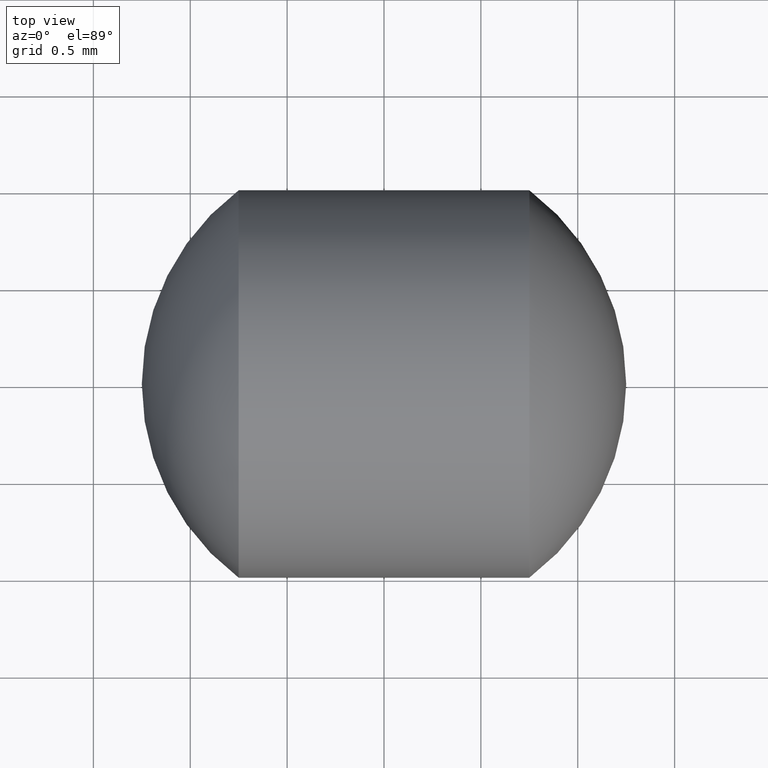
[diagram: clean part render]
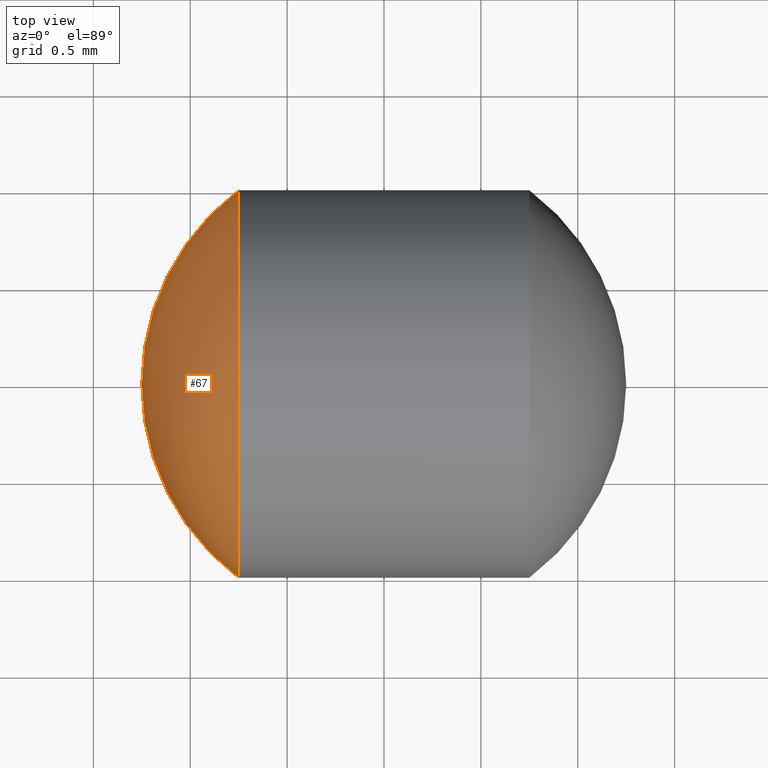
[diagram: same view with one face highlighted and labeled with its STEP entity id]
A machine part, top view. The second image highlights one B-rep face of the part: STEP entity #67.
In plain terms, the highlighted spherical surface has radius 1.25 mm.
Its self-contained STEP definition (entity closure, byte-faithful):
#4 = ORIENTED_EDGE ( 'NONE', *, *, #265, .T. ) ;
#15 = VERTEX_POINT ( 'NONE', #54 ) ;
#16 = DIRECTION ( 'NONE',  ( 4.187626049147712300E-017, 1.000000000000000000, 0.0000000000000000000 ) ) ;
#21 = CARTESIAN_POINT ( 'NONE',  ( -0.7500000000000001100, -0.9999999999999997800, -1.224646799147353000E-016 ) ) ;
#31 = CARTESIAN_POINT ( 'NONE',  ( 0.0000000000000000000, 0.0000000000000000000, 0.0000000000000000000 ) ) ;
#42 = SPHERICAL_SURFACE ( 'NONE', #259, 1.250000000000000000 ) ;
#44 = ORIENTED_EDGE ( 'NONE', *, *, #206, .T. ) ;
#54 = CARTESIAN_POINT ( 'NONE',  ( -0.7500000000000001100, 1.000000000000000000, 0.0000000000000000000 ) ) ;
#67 = ADVANCED_FACE ( 'NONE', ( #172 ), #42, .T. ) ;
#75 = DIRECTION ( 'NONE',  ( 5.128362837114822700E-033, 1.224646799147353200E-016, -1.000000000000000000 ) ) ;
#88 = CARTESIAN_POINT ( 'NONE',  ( -0.7500000000000001100, 1.160500205169223100E-016, 0.0000000000000000000 ) ) ;
#89 = CARTESIAN_POINT ( 'NONE',  ( -1.250000000000000000, 1.288857505610559800E-016, 0.0000000000000000000 ) ) ;
#93 = ORIENTED_EDGE ( 'NONE', *, *, #225, .F. ) ;
#99 = CARTESIAN_POINT ( 'NONE',  ( 0.0000000000000000000, 0.0000000000000000000, 0.0000000000000000000 ) ) ;
#105 = AXIS2_PLACEMENT_3D ( 'NONE', #214, #75, #292 ) ;
#122 = VERTEX_POINT ( 'NONE', #89 ) ;
#172 = FACE_OUTER_BOUND ( 'NONE', #286, .T. ) ;
#178 = DIRECTION ( 'NONE',  ( -1.000000000000000000, 4.187626049147712300E-017, -0.0000000000000000000 ) ) ;
#183 = CIRCLE ( 'NONE', #289, 1.000000000000000200 ) ;
#198 = VERTEX_POINT ( 'NONE', #21 ) ;
#203 = DIRECTION ( 'NONE',  ( 0.0000000000000000000, -1.000000000000000000, 0.0000000000000000000 ) ) ;
#206 = EDGE_CURVE ( 'NONE', #15, #122, #266, .T. ) ;
#214 = CARTESIAN_POINT ( 'NONE',  ( 0.0000000000000000000, 0.0000000000000000000, 0.0000000000000000000 ) ) ;
#222 = DIRECTION ( 'NONE',  ( 0.0000000000000000000, 0.0000000000000000000, -1.000000000000000000 ) ) ;
#225 = EDGE_CURVE ( 'NONE', #198, #122, #257, .T. ) ;
#246 = DIRECTION ( 'NONE',  ( 1.000000000000000000, 0.0000000000000000000, 0.0000000000000000000 ) ) ;
#248 = DIRECTION ( 'NONE',  ( 0.0000000000000000000, 0.0000000000000000000, 1.000000000000000000 ) ) ;
#257 = CIRCLE ( 'NONE', #105, 1.250000000000000000 ) ;
#259 = AXIS2_PLACEMENT_3D ( 'NONE', #31, #222, #16 ) ;
#265 = EDGE_CURVE ( 'NONE', #198, #15, #183, .T. ) ;
#266 = CIRCLE ( 'NONE', #275, 1.250000000000000000 ) ;
#275 = AXIS2_PLACEMENT_3D ( 'NONE', #99, #248, #246 ) ;
#286 = EDGE_LOOP ( 'NONE', ( #93, #4, #44 ) ) ;
#289 = AXIS2_PLACEMENT_3D ( 'NONE', #88, #178, #203 ) ;
#292 = DIRECTION ( 'NONE',  ( 0.0000000000000000000, 1.000000000000000000, 1.224646799147353200E-016 ) ) ;